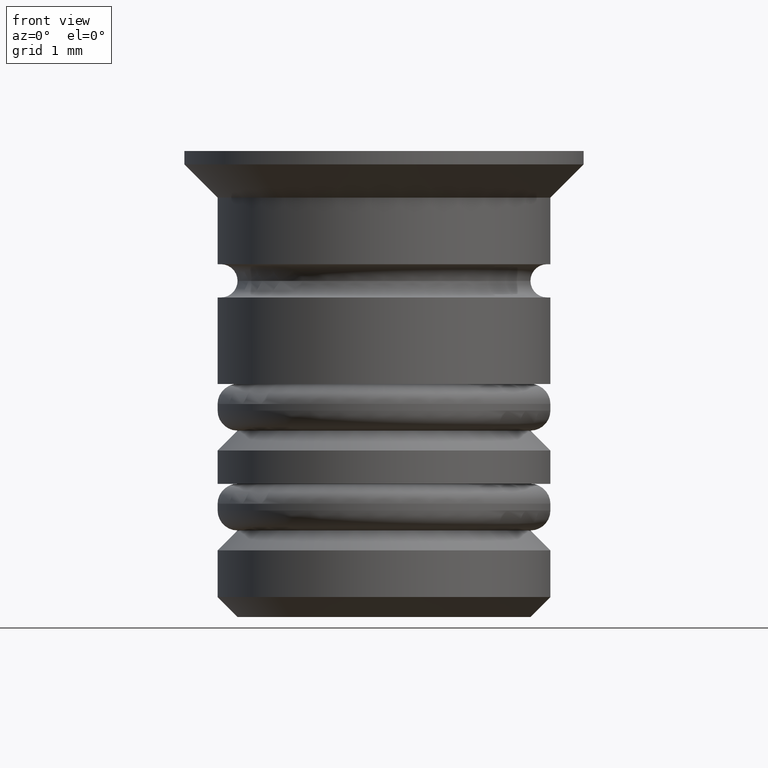
[diagram: clean part render]
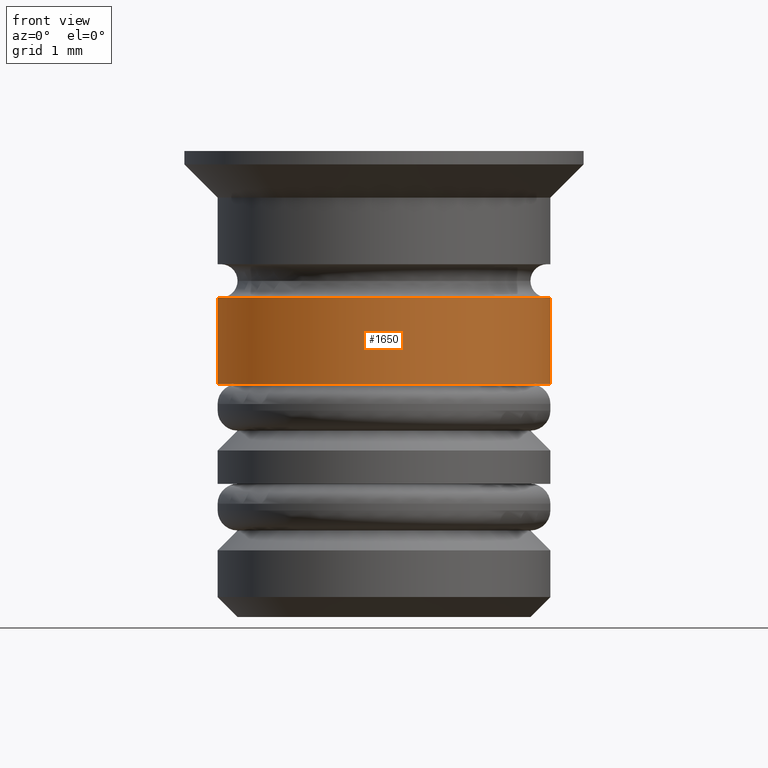
[diagram: same view with one face highlighted and labeled with its STEP entity id]
A machine part, front view. The second image highlights one B-rep face of the part: STEP entity #1650.
In plain terms, the highlighted cylindrical surface (partial cylindrical patch) has radius 2.5 mm, axis along (-0, -0, 1).
Its self-contained STEP definition (entity closure, byte-faithful):
#50 = CARTESIAN_POINT ( 'NONE',  ( 2.500000000000000888, 0.000000000000000000, 0.000000000000000000 ) ) ;
#53 = FACE_OUTER_BOUND ( 'NONE', #1723, .T. ) ;
#93 = CARTESIAN_POINT ( 'NONE',  ( 0.000000000000000000, 0.000000000000000000, -3.500000000000003997 ) ) ;
#217 = LINE ( 'NONE', #50, #1308 ) ;
#340 = ORIENTED_EDGE ( 'NONE', *, *, #1116, .T. ) ;
#401 = CIRCLE ( 'NONE', #1312, 2.500000000000000888 ) ;
#553 = ORIENTED_EDGE ( 'NONE', *, *, #1015, .F. ) ;
#561 = ORIENTED_EDGE ( 'NONE', *, *, #563, .F. ) ;
#563 = EDGE_CURVE ( 'NONE', #893, #1063, #1291, .T. ) ;
#583 = VERTEX_POINT ( 'NONE', #665 ) ;
#665 = CARTESIAN_POINT ( 'NONE',  ( 2.500000000000000888, 0.000000000000000000, -3.500000000000003997 ) ) ;
#711 = CARTESIAN_POINT ( 'NONE',  ( -2.500000000000000888, 3.061616997868384127E-16, -3.500000000000003997 ) ) ;
#775 = DIRECTION ( 'NONE',  ( -0.000000000000000000, -0.000000000000000000, 1.000000000000000000 ) ) ;
#791 = CARTESIAN_POINT ( 'NONE',  ( 2.500000000000000888, 0.000000000000000000, -2.200000000000000622 ) ) ;
#792 = DIRECTION ( 'NONE',  ( -0.000000000000000000, -0.000000000000000000, 1.000000000000000000 ) ) ;
#832 = ORIENTED_EDGE ( 'NONE', *, *, #882, .T. ) ;
#882 = EDGE_CURVE ( 'NONE', #583, #1063, #217, .T. ) ;
#893 = VERTEX_POINT ( 'NONE', #1048 ) ;
#1015 = EDGE_CURVE ( 'NONE', #1512, #893, #1756, .T. ) ;
#1048 = CARTESIAN_POINT ( 'NONE',  ( -2.500000000000000888, 3.061616997868384127E-16, -2.200000000000000622 ) ) ;
#1054 = AXIS2_PLACEMENT_3D ( 'NONE', #1604, #775, #1624 ) ;
#1063 = VERTEX_POINT ( 'NONE', #791 ) ;
#1064 = CARTESIAN_POINT ( 'NONE',  ( -2.500000000000000888, 3.061616997868384127E-16, 0.000000000000000000 ) ) ;
#1079 = VECTOR ( 'NONE', #792, 1000.000000000000000 ) ;
#1116 = EDGE_CURVE ( 'NONE', #1512, #583, #401, .T. ) ;
#1181 = DIRECTION ( 'NONE',  ( -0.000000000000000000, -0.000000000000000000, 1.000000000000000000 ) ) ;
#1203 = DIRECTION ( 'NONE',  ( 1.000000000000000000, 0.000000000000000000, 0.000000000000000000 ) ) ;
#1217 = DIRECTION ( 'NONE',  ( -0.000000000000000000, -0.000000000000000000, 1.000000000000000000 ) ) ;
#1291 = CIRCLE ( 'NONE', #1349, 2.500000000000000888 ) ;
#1308 = VECTOR ( 'NONE', #1181, 1000.000000000000000 ) ;
#1312 = AXIS2_PLACEMENT_3D ( 'NONE', #93, #1370, #1665 ) ;
#1348 = CARTESIAN_POINT ( 'NONE',  ( 0.000000000000000000, 0.000000000000000000, -2.200000000000000622 ) ) ;
#1349 = AXIS2_PLACEMENT_3D ( 'NONE', #1348, #1217, #1203 ) ;
#1370 = DIRECTION ( 'NONE',  ( -0.000000000000000000, -0.000000000000000000, 1.000000000000000000 ) ) ;
#1512 = VERTEX_POINT ( 'NONE', #711 ) ;
#1604 = CARTESIAN_POINT ( 'NONE',  ( 0.000000000000000000, 0.000000000000000000, 0.000000000000000000 ) ) ;
#1624 = DIRECTION ( 'NONE',  ( 1.000000000000000000, 0.000000000000000000, 0.000000000000000000 ) ) ;
#1641 = CYLINDRICAL_SURFACE ( 'NONE', #1054, 2.500000000000000888 ) ;
#1650 = ADVANCED_FACE ( 'NONE', ( #53 ), #1641, .T. ) ;
#1665 = DIRECTION ( 'NONE',  ( 1.000000000000000000, 0.000000000000000000, 0.000000000000000000 ) ) ;
#1723 = EDGE_LOOP ( 'NONE', ( #553, #340, #832, #561 ) ) ;
#1756 = LINE ( 'NONE', #1064, #1079 ) ;